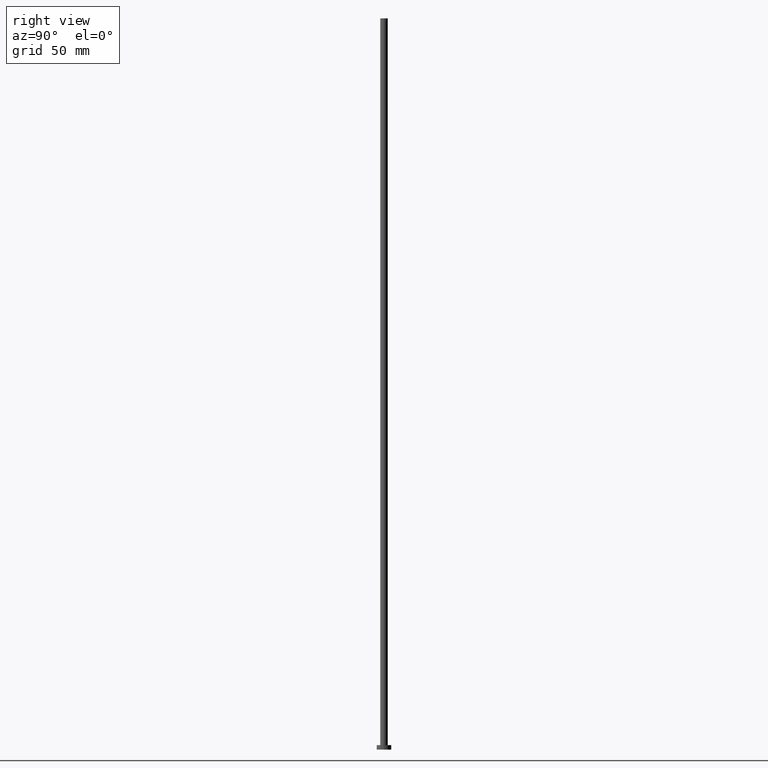
[diagram: clean part render]
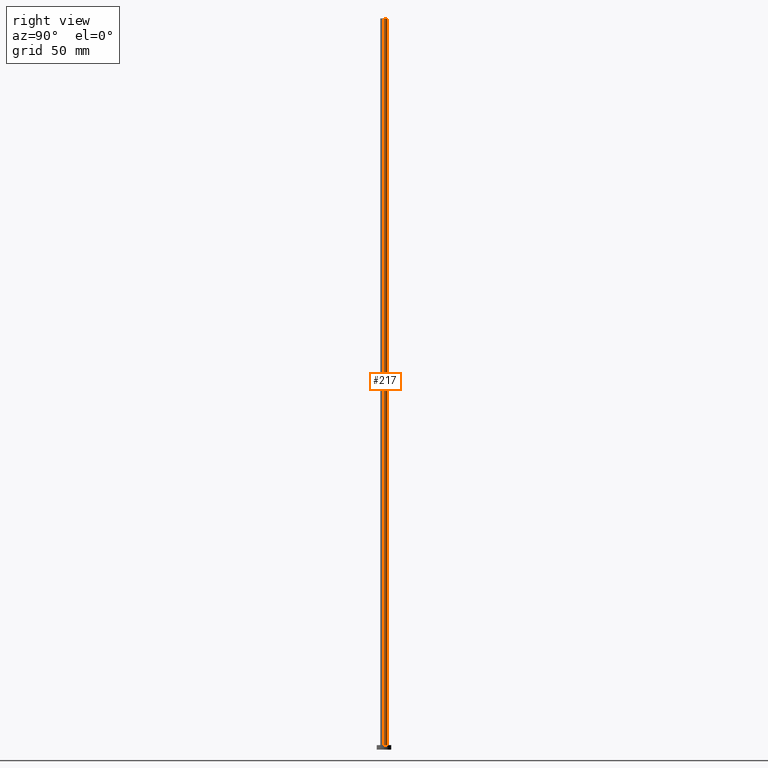
[diagram: same view with one face highlighted and labeled with its STEP entity id]
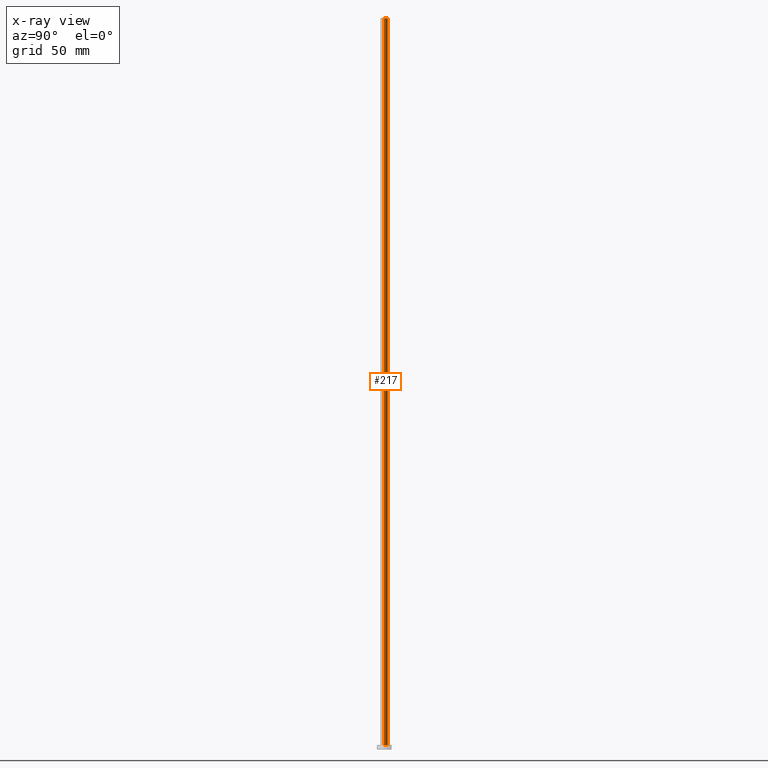
[diagram: x-ray of the same camera — body ghosted, the highlighted face saturated]
A machine part, right view. The second image highlights one B-rep face of the part: STEP entity #217.
The next image is the same camera in x-ray: the body ghosted, the highlighted face saturated — about 0% of this face is hidden behind the body in this view.
In plain terms, the highlighted cylindrical surface (edge-blend (fillet) strip) has radius 2.6 mm, axis along (-0, -0, -1).
Its self-contained STEP definition (entity closure, byte-faithful):
#3 = AXIS2_PLACEMENT_3D ( 'NONE', #220, #206, #29 ) ;
#16 = DIRECTION ( 'NONE',  ( -0.000000000000000000, -0.000000000000000000, -1.000000000000000000 ) ) ;
#19 = EDGE_CURVE ( 'NONE', #237, #155, #31, .T. ) ;
#20 = CARTESIAN_POINT ( 'NONE',  ( -2.600000000000000089, 0.000000000000000000, 500.0000000000000000 ) ) ;
#21 = CARTESIAN_POINT ( 'NONE',  ( 2.600000000000000089, 3.184081677783117698E-16, 500.0000000000000000 ) ) ;
#22 = ORIENTED_EDGE ( 'NONE', *, *, #55, .T. ) ;
#29 = DIRECTION ( 'NONE',  ( -1.000000000000000000, 0.000000000000000000, 0.000000000000000000 ) ) ;
#31 = LINE ( 'NONE', #20, #74 ) ;
#39 = ORIENTED_EDGE ( 'NONE', *, *, #19, .F. ) ;
#42 = ORIENTED_EDGE ( 'NONE', *, *, #140, .T. ) ;
#44 = DIRECTION ( 'NONE',  ( 0.000000000000000000, 0.000000000000000000, 1.000000000000000000 ) ) ;
#53 = VERTEX_POINT ( 'NONE', #234 ) ;
#54 = DIRECTION ( 'NONE',  ( 1.000000000000000000, 0.000000000000000000, 0.000000000000000000 ) ) ;
#55 = EDGE_CURVE ( 'NONE', #62, #155, #125, .T. ) ;
#62 = VERTEX_POINT ( 'NONE', #244 ) ;
#64 = CARTESIAN_POINT ( 'NONE',  ( 0.000000000000000000, 0.000000000000000000, 3.000000000000000000 ) ) ;
#65 = CYLINDRICAL_SURFACE ( 'NONE', #3, 2.600000000000000089 ) ;
#74 = VECTOR ( 'NONE', #16, 1000.000000000000000 ) ;
#83 = AXIS2_PLACEMENT_3D ( 'NONE', #64, #44, #54 ) ;
#100 = ORIENTED_EDGE ( 'NONE', *, *, #164, .F. ) ;
#103 = CIRCLE ( 'NONE', #228, 2.600000000000000089 ) ;
#110 = LINE ( 'NONE', #21, #233 ) ;
#122 = CARTESIAN_POINT ( 'NONE',  ( -2.600000000000000089, 0.000000000000000000, 500.0000000000000000 ) ) ;
#125 = CIRCLE ( 'NONE', #83, 2.600000000000000089 ) ;
#134 = CARTESIAN_POINT ( 'NONE',  ( -2.600000000000000089, 0.000000000000000000, 3.000000000000000000 ) ) ;
#140 = EDGE_CURVE ( 'NONE', #53, #62, #110, .T. ) ;
#155 = VERTEX_POINT ( 'NONE', #134 ) ;
#164 = EDGE_CURVE ( 'NONE', #53, #237, #103, .T. ) ;
#166 = DIRECTION ( 'NONE',  ( 0.000000000000000000, 0.000000000000000000, 1.000000000000000000 ) ) ;
#186 = DIRECTION ( 'NONE',  ( -0.000000000000000000, -0.000000000000000000, -1.000000000000000000 ) ) ;
#203 = CARTESIAN_POINT ( 'NONE',  ( 0.000000000000000000, 0.000000000000000000, 500.0000000000000000 ) ) ;
#206 = DIRECTION ( 'NONE',  ( -0.000000000000000000, -0.000000000000000000, -1.000000000000000000 ) ) ;
#216 = DIRECTION ( 'NONE',  ( 1.000000000000000000, 0.000000000000000000, 0.000000000000000000 ) ) ;
#217 = ADVANCED_FACE ( 'NONE', ( #243 ), #65, .T. ) ;
#220 = CARTESIAN_POINT ( 'NONE',  ( 0.000000000000000000, 0.000000000000000000, 500.0000000000000000 ) ) ;
#228 = AXIS2_PLACEMENT_3D ( 'NONE', #203, #166, #216 ) ;
#233 = VECTOR ( 'NONE', #186, 1000.000000000000000 ) ;
#234 = CARTESIAN_POINT ( 'NONE',  ( 2.600000000000000089, 3.184081677783117698E-16, 500.0000000000000000 ) ) ;
#237 = VERTEX_POINT ( 'NONE', #122 ) ;
#242 = EDGE_LOOP ( 'NONE', ( #100, #42, #22, #39 ) ) ;
#243 = FACE_OUTER_BOUND ( 'NONE', #242, .T. ) ;
#244 = CARTESIAN_POINT ( 'NONE',  ( 2.600000000000000089, 3.184081677783117698E-16, 3.000000000000000000 ) ) ;